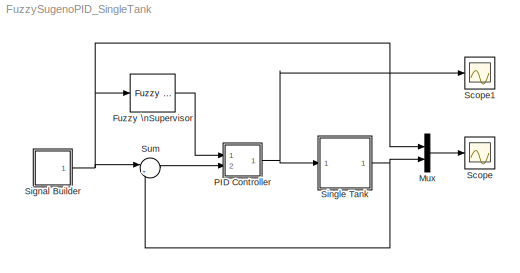
MODEL FuzzySugenoPID_SingleTank
KIND model
CONFIG PreLoadFcn = FuzzyK=readfis('FuzzySugenoPID_SingleTank.fis');
CONFIG StartFcn = FuzzyK=readfis('FuzzySugenoPID_SingleTank.fis');
BLOCK [Reference] Fuzzy \nSupervisor  REF=fuzblock/Fuzzy Logic \nController  (lib defined in mdl_858b3b3e7478)
  Ports = [1, 1]
  SID = 1
  SourceBlock = fuzblock/Fuzzy Logic \nController
  SourceType = FIS
  fis = FuzzyK
BLOCK [Mux] Mux
  DisplayOption = bar
  Inputs = 2
  Ports = [2, 1]
  SID = 2
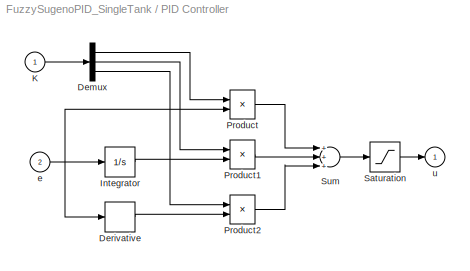
BLOCK [SubSystem] PID Controller
  AncestorBlock = simulink_extras/Additional\nLinear/PID Controller
  Ports = [2, 1]
  RequestExecContextInheritance = off
  SID = 3
  Variant = off
BLOCK [Demux] PID Controller/Demux
  Outputs = 3
  Ports = [1, 3]
  SID = 3:3
BLOCK [Derivative] PID Controller/Derivative
  SID = 3:4
BLOCK [Integrator] PID Controller/Integrator
  Ports = [1, 1]
  SID = 3:5
BLOCK [Inport] PID Controller/K
  IconDisplay = Port number
  SID = 3:1
BLOCK [Product] PID Controller/Product
  InputSameDT = off
  Ports = [2, 1]
  RndMeth = Floor
  SID = 3:6
BLOCK [Product] PID Controller/Product1
  InputSameDT = off
  Ports = [2, 1]
  RndMeth = Floor
  SID = 3:7
BLOCK [Product] PID Controller/Product2
  InputSameDT = off
  Ports = [2, 1]
  RndMeth = Floor
  SID = 3:8
BLOCK [Saturate] PID Controller/Saturation
  InputPortMap = u0
  LowerLimit = 0
  Ports = [1, 1]
  SID = 3:9
  UpperLimit = 12
BLOCK [Sum] PID Controller/Sum
  Inputs = +++
  Ports = [3, 1]
  SID = 3:10
BLOCK [Inport] PID Controller/e
  IconDisplay = Port number
  Port = 2
  SID = 3:2
BLOCK [Outport] PID Controller/u
  IconDisplay = Port number
  InitialOutput = 0
  SID = 3:11
BLOCK [Scope] Scope
  NumInputPorts = 1
  Ports = [1]
  SID = 4
  ScopeSpecificationString = Simulink.scopes.TimeScopeBlockCfg('CurrentConfiguration', extmgr.ConfigurationSet(extmgr.Configuration('Core','General UI',true),extmgr.Configuration('Core','Source UI',true),extmgr.Configuration('Sources','WiredSimulink',true,'DataLogging',true,'DataLoggingVariableName','TankLevel','DataLoggingSaveFormat','Array','DataLoggingDecimation','1','DataLoggingDecimateData',true),extmgr.Configuration('Vi...<+1672ch>
BLOCK [Scope] Scope1
  NumInputPorts = 1
  Ports = [1]
  SID = 27
  ScopeSpecificationString = C++SS(StrPVP('Location','[6, 43, 1026, 758]'),StrPVP('Open','off'),MxPVP('AxesTitles',24,'struct(''axes1'',''%<SignalLabel>'')'),StrPVP('YMin','0'),StrPVP('YMax','50'),StrPVP('SaveToWorkspace','on'),StrPVP('SaveName','TankLevel1'),StrPVP('DataFormat','Array'),StrPVP('LimitDataPoints','off'),StrPVP('BlockParamSampleTime','0'),StrPVP('Decimation','1'),StrPVP('BlockParamSampleInput','off'))
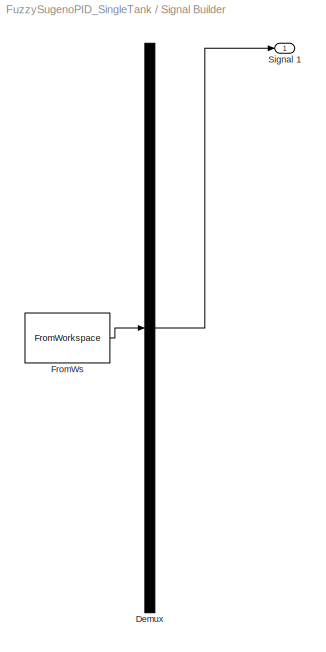
BLOCK [SubSystem] Signal Builder
  ClipboardFcn = sigbuilder_block('clipboard');
  CloseFcn = sigbuilder_block('close');
  ContinueFcn = sigbuilder_block('continue')
  CopyFcn = sigbuilder_block('copy');
  DeleteFcn = sigbuilder_block('delete');
  LoadFcn = sigbuilder_block('load',[112.5 99 550.5 394.5 ]);
  MaskHideContents = on
  ModelCloseFcn = sigbuilder_block('modelClose');
  NameChangeFcn = sigbuilder_block('namechange');
  OpenFcn = sigbuilder_block('open',[437.6 199.2 550.4 400 ]);
  PauseFcn = sigbuilder_block('pause')
  Ports = [0, 1]
  PreSaveFcn = sigbuilder_block('preSave');
  RequestExecContextInheritance = off
  SID = 26
  StartFcn = sigbuilder_block('start');
  StopFcn = sigbuilder_block('stop');
  Tag = STV Subsys
  Variant = off
BLOCK [Demux] Signal Builder/Demux
  Outputs = 1
  Ports = [1, 1]
  SID = 26:1
  Tag = STV Demux
BLOCK [FromWorkspace] Signal Builder/FromWs
  SID = 26:2
  SampleTime = 0
  SigBuilderData = DataTag0
  Tag = STV FromWs
  VariableName = tuvar
  VnvData = DataTag1
  ZeroCross = on
BLOCK [Outport] Signal Builder/Signal 1
  IconDisplay = Port number
  SID = 26:3
  Tag = STV Outport
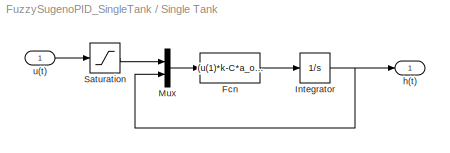
BLOCK [SubSystem] Single Tank
  Ports = [1, 1]
  RequestExecContextInheritance = off
  SID = 18
  Variant = off
BLOCK [Fcn] Single Tank/Fcn
  Expr = (u(1)*k-C*a_out*sqrt(2*g*u(2)))/((A_max-A_min)*u(2)/h_max+A_min)
  SID = 20
BLOCK [Integrator] Single Tank/Integrator
  LimitOutput = on
  LowerSaturationLimit = 0
  Ports = [1, 1]
  SID = 21
  UpperSaturationLimit = h_max
BLOCK [Mux] Single Tank/Mux
  DisplayOption = bar
  Inputs = 2
  Ports = [2, 1]
  SID = 22
BLOCK [Saturate] Single Tank/Saturation
  InputPortMap = u0
  LowerLimit = 0
  Ports = [1, 1]
  SID = 23
  UpperLimit = 12
BLOCK [Outport] Single Tank/h(t)
  IconDisplay = Port number
  SID = 24
BLOCK [Inport] Single Tank/u(t)
  IconDisplay = Port number
  SID = 19
BLOCK [Sum] Sum
  IconShape = round
  InputSameDT = off
  Inputs = |+-
  OutDataTypeStr = Inherit: Inherit via internal rule
  Ports = [2, 1]
  SID = 25
LINE Fuzzy \nSupervisor:1 -> PID Controller:1
LINE Mux:1 -> Scope:1
LINE PID Controller/Demux:1 -> PID Controller/Product:1
LINE PID Controller/Demux:2 -> PID Controller/Product1:1
LINE PID Controller/Demux:3 -> PID Controller/Product2:1
LINE PID Controller/Derivative:1 -> PID Controller/Product2:2
LINE PID Controller/Integrator:1 -> PID Controller/Product1:2
LINE PID Controller/K:1 -> PID Controller/Demux:1
LINE PID Controller/Product1:1 -> PID Controller/Sum:2
LINE PID Controller/Product2:1 -> PID Controller/Sum:3
LINE PID Controller/Product:1 -> PID Controller/Sum:1
LINE PID Controller/Saturation:1 -> PID Controller/u:1
LINE PID Controller/Sum:1 -> PID Controller/Saturation:1
NET PID Controller/e:1 -> PID Controller/Derivative:1, PID Controller/Integrator:1, PID Controller/Product:2
NET PID Controller:1 -> Scope1:1, Single Tank:1
LINE Signal Builder/Demux:1 -> Signal Builder/Signal 1:1
LINE Signal Builder/FromWs:1 -> Signal Builder/Demux:1
NET Signal Builder:1 -> Fuzzy \nSupervisor:1, Mux:1, Sum:1
LINE Single Tank/Fcn:1 -> Single Tank/Integrator:1
NET Single Tank/Integrator:1 -> Single Tank/Mux:2, Single Tank/h(t):1
LINE Single Tank/Mux:1 -> Single Tank/Fcn:1
LINE Single Tank/Saturation:1 -> Single Tank/Mux:1
LINE Single Tank/u(t):1 -> Single Tank/Saturation:1
NET Single Tank:1 -> Mux:2, Sum:2
LINE Sum:1 -> PID Controller:2
note: NET lines group one-source signal fan-out (src -> all destinations, sorted); 1:1 wires keep LINE
